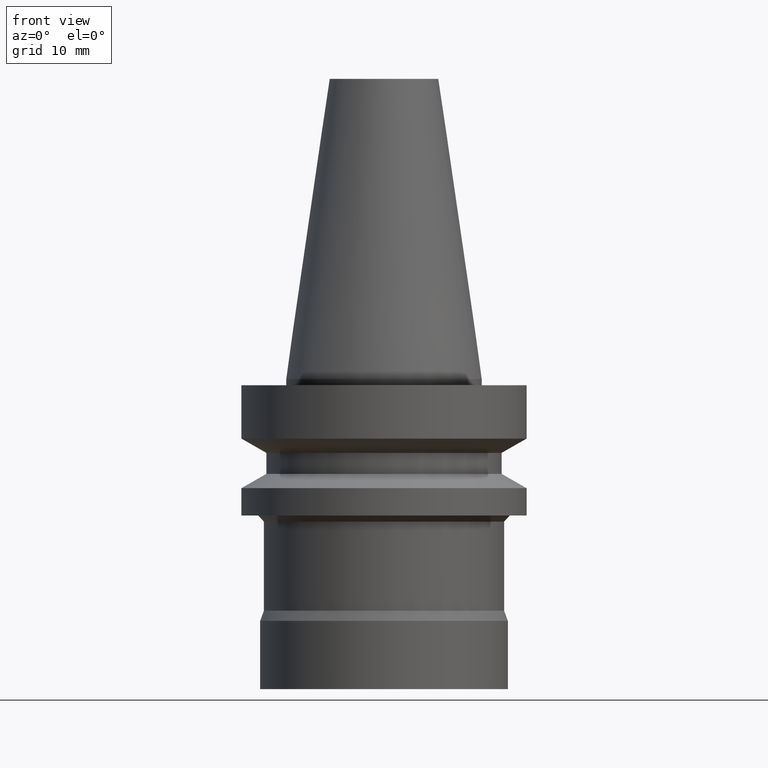
[diagram: clean part render]
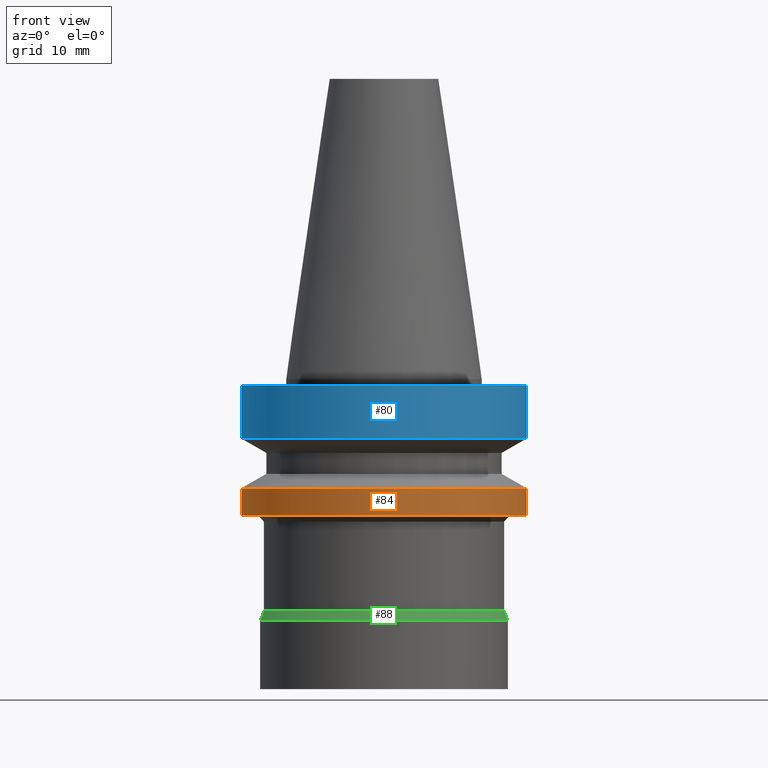
[diagram: same view with three faces highlighted in distinct colors, each labeled with its STEP entity id]
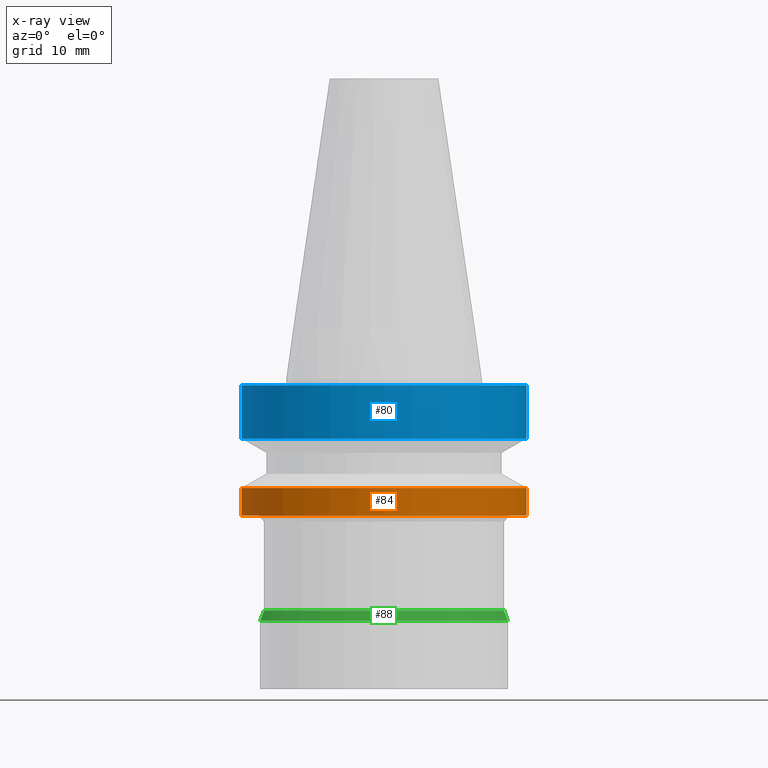
[diagram: x-ray of the same camera — body ghosted, the three highlighted faces saturated]
A machine part, front view with three faces highlighted in distinct colors.
The next image is the same camera in x-ray (body ghosted, the three faces saturated) — at least one of them is partly hidden behind the body in this view.
Their STEP definitions:

[orange] entity #84 — the highlighted cylindrical surface (bore or boss wall) has radius 23 mm, axis along (-0, -0, 1).
#84=ADVANCED_FACE('',(#116,#117),#118,.T.);
#116=FACE_BOUND('',#159,.T.);
#117=FACE_BOUND('',#160,.T.);
#118=CYLINDRICAL_SURFACE('',#161,23.0);
#159=EDGE_LOOP('',(#220));
#160=EDGE_LOOP('',(#221));
#161=AXIS2_PLACEMENT_3D('',#222,#223,#224);
#220=ORIENTED_EDGE('',*,*,#259,.F.);
#221=ORIENTED_EDGE('',*,*,#258,.T.);
#222=CARTESIAN_POINT('',(1.21240033115588E-015,2.42480066231176E-015,-19.8));
#223=DIRECTION('',(-6.12323399573677E-017,-1.22464679914735E-016,1.0));
#224=DIRECTION('',(-1.23259516440783E-032,1.0,1.22464679914735E-016));
#258=EDGE_CURVE('',#280,#280,#281,.T.);
#259=EDGE_CURVE('',#282,#282,#283,.T.);
#280=VERTEX_POINT('',#308);
#281=CIRCLE('',#309,23.0);
#282=VERTEX_POINT('',#310);
#283=CIRCLE('',#311,23.0);
#308=CARTESIAN_POINT('',(1.07768918324967E-015,23.0,-17.6));
#309=AXIS2_PLACEMENT_3D('',#344,#345,#346);
#310=CARTESIAN_POINT('',(1.34711147906209E-015,23.0,-22.0));
#311=AXIS2_PLACEMENT_3D('',#347,#348,#349);
#344=CARTESIAN_POINT('',(1.07768918324967E-015,2.15537836649934E-015,-17.6));
#345=DIRECTION('',(6.12323399573677E-017,1.22464679914735E-016,-1.0));
#346=DIRECTION('',(-1.23259516440783E-032,1.0,1.22464679914735E-016));
#347=CARTESIAN_POINT('',(1.34711147906209E-015,2.69422295812418E-015,-22.0));
#348=DIRECTION('',(6.12323399573677E-017,1.22464679914735E-016,-1.0));
#349=DIRECTION('',(-1.23259516440783E-032,1.0,1.22464679914735E-016));

[blue] entity #80 — the highlighted cylindrical surface (bore or boss wall) has radius 23 mm, axis along (-0, -0, 1).
#80=ADVANCED_FACE('',(#104,#105),#106,.T.);
#104=FACE_BOUND('',#147,.T.);
#105=FACE_BOUND('',#148,.T.);
#106=CYLINDRICAL_SURFACE('',#149,23.0);
#147=EDGE_LOOP('',(#200));
#148=EDGE_LOOP('',(#201));
#149=AXIS2_PLACEMENT_3D('',#202,#203,#204);
#200=ORIENTED_EDGE('',*,*,#255,.F.);
#201=ORIENTED_EDGE('',*,*,#254,.T.);
#202=CARTESIAN_POINT('',(3.24531401774048E-016,6.49062803548097E-016,-5.3));
#203=DIRECTION('',(-6.12323399573677E-017,-1.22464679914735E-016,1.0));
#204=DIRECTION('',(-1.23259516440783E-032,1.0,1.22464679914735E-016));
#254=EDGE_CURVE('',#272,#272,#273,.T.);
#255=EDGE_CURVE('',#274,#274,#275,.T.);
#272=VERTEX_POINT('',#300);
#273=CIRCLE('',#301,23.0);
#274=VERTEX_POINT('',#302);
#275=CIRCLE('',#303,23.0);
#300=CARTESIAN_POINT('',(6.12323399573674E-017,23.0,-0.999999999999997));
#301=AXIS2_PLACEMENT_3D('',#332,#333,#334);
#302=CARTESIAN_POINT('',(5.87830463590729E-016,23.0,-9.6));
#303=AXIS2_PLACEMENT_3D('',#335,#336,#337);
#332=CARTESIAN_POINT('',(6.12323399573677E-017,1.22464679914735E-016,-1.0));
#333=DIRECTION('',(6.12323399573677E-017,1.22464679914735E-016,-1.0));
#334=DIRECTION('',(-1.23259516440783E-032,1.0,1.22464679914735E-016));
#335=CARTESIAN_POINT('',(5.8783046359073E-016,1.17566092718146E-015,-9.6));
#336=DIRECTION('',(6.12323399573677E-017,1.22464679914735E-016,-1.0));
#337=DIRECTION('',(-1.23259516440783E-032,1.0,1.22464679914735E-016));

[green] entity #88 — the highlighted conical surface has half-angle 20.023 deg.
#88=ADVANCED_FACE('',(#128,#129),#130,.T.);
#128=FACE_BOUND('',#171,.T.);
#129=FACE_BOUND('',#172,.T.);
#130=CONICAL_SURFACE('',#173,19.7,0.349471101066701);
#171=EDGE_LOOP('',(#240));
#172=EDGE_LOOP('',(#241));
#173=AXIS2_PLACEMENT_3D('',#242,#243,#244);
#240=ORIENTED_EDGE('',*,*,#263,.F.);
#241=ORIENTED_EDGE('',*,*,#262,.T.);
#242=CARTESIAN_POINT('',(2.33765448502415E-015,4.67530897004829E-015,-38.17679492));
#243=DIRECTION('',(6.12323399573677E-017,1.22464679914735E-016,-1.0));
#244=DIRECTION('',(-1.23259516440783E-032,1.0,1.22464679914735E-016));
#262=EDGE_CURVE('',#288,#288,#289,.T.);
#263=EDGE_CURVE('',#290,#290,#291,.T.);
#288=VERTEX_POINT('',#316);
#289=CIRCLE('',#317,19.4);
#290=VERTEX_POINT('',#318);
#291=CIRCLE('',#319,20.0);
#316=CARTESIAN_POINT('',(2.28724771171095E-015,19.4,-37.35358984));
#317=AXIS2_PLACEMENT_3D('',#356,#357,#358);
#318=CARTESIAN_POINT('',(2.38806125833734E-015,20.0,-39.0));
#319=AXIS2_PLACEMENT_3D('',#359,#360,#361);
#356=CARTESIAN_POINT('',(2.28724771171095E-015,4.57449542342191E-015,-37.35358984));
#357=DIRECTION('',(6.12323399573677E-017,1.22464679914735E-016,-1.0));
#358=DIRECTION('',(-1.23259516440783E-032,1.0,1.22464679914735E-016));
#359=CARTESIAN_POINT('',(2.38806125833734E-015,4.77612251667468E-015,-39.0));
#360=DIRECTION('',(6.12323399573677E-017,1.22464679914735E-016,-1.0));
#361=DIRECTION('',(-1.23259516440783E-032,1.0,1.22464679914735E-016));